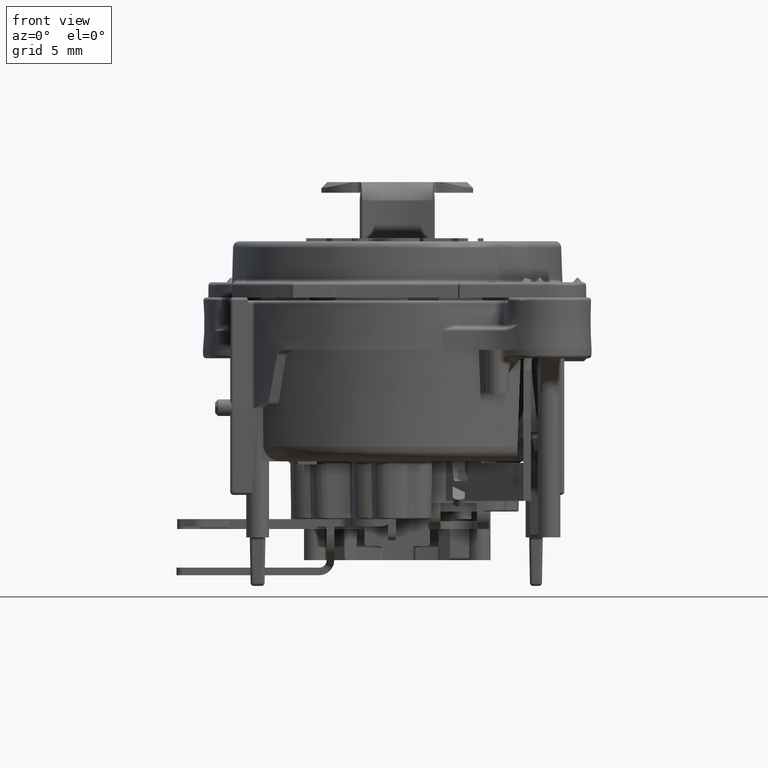
[diagram: clean part render]
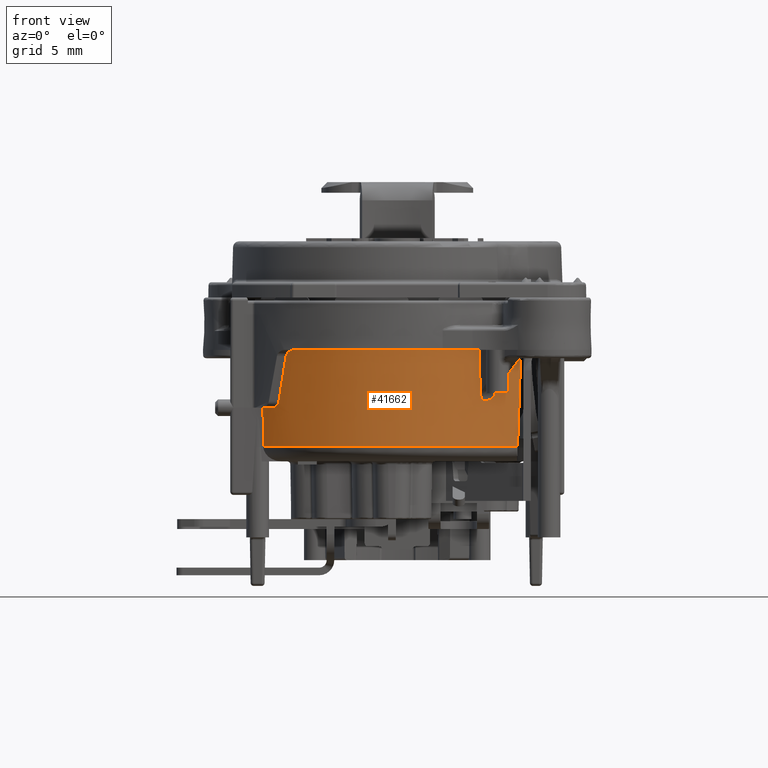
[diagram: same view with one face highlighted and labeled with its STEP entity id]
A machine part, front view. The second image highlights one B-rep face of the part: STEP entity #41662.
In plain terms, the highlighted conical surface has half-angle 1 deg.
Its self-contained STEP definition (entity closure, byte-faithful):
#575=CARTESIAN_POINT('',(6.597023006025E0,-8.654096825730E0,-1.041273796781E0));
#584=CARTESIAN_POINT('',(6.597023006025E0,-8.654096825729E0,-1.041273796776E0));
#585=CARTESIAN_POINT('',(6.569734494499E0,-8.663911344211E0,-1.541882761311E0));
#586=CARTESIAN_POINT('',(6.542370924642E0,-8.673650608783E0,-2.042489087036E0));
#587=CARTESIAN_POINT('',(6.514931512749E0,-8.683313833700E0,-2.543092746398E0));
#589=CARTESIAN_POINT('',(6.514931512764E0,-8.683313833739E0,-2.543092747554E0));
#809=CARTESIAN_POINT('',(5.630559594090E0,-9.263686287858E0,-3.401799628316E0));
#810=CARTESIAN_POINT('',(5.600752667102E0,-9.283184575680E0,-3.334335896256E0));
#811=CARTESIAN_POINT('',(5.547403265412E0,-9.317857847597E0,-3.203772018585E0));
#812=CARTESIAN_POINT('',(5.493036848047E0,-9.353807779979E0,-3.012369080364E0));
#813=CARTESIAN_POINT('',(5.478163368914E0,-9.364881934133E0,-2.894122083722E0));
#814=CARTESIAN_POINT('',(5.476212551509E0,-9.367181870069E0,-2.836777508511E0));
#830=CARTESIAN_POINT('',(5.476212551509E0,-9.367181870069E0,-2.836777508511E0));
#832=CARTESIAN_POINT('',(5.476212551395E0,-9.367181869906E0,-2.836777507577E0));
#833=CARTESIAN_POINT('',(5.444050676385E0,-9.405103240084E0,-1.891186249976E0));
#834=CARTESIAN_POINT('',(5.411666449131E0,-9.442802350387E0,
-9.455937461166E-1));
#835=CARTESIAN_POINT('',(5.379060582960E0,-9.480279913842E0,
3.174349672008E-12));
#1123=CARTESIAN_POINT('',(0.E0,0.E0,-1.136868377216E-13));
#1124=DIRECTION('',(0.E0,0.E0,-1.E0));
#1125=DIRECTION('',(4.934917966020E-1,-8.697504508113E-1,0.E0));
#1126=AXIS2_PLACEMENT_3D('',#1123,#1124,#1125);
#1620=CARTESIAN_POINT('',(-7.328446429314E0,-8.058951735582E0,
-4.131759111665E-1));
#1621=CARTESIAN_POINT('',(-7.322445611335E0,-8.065251535125E0,
-3.774479725498E-1));
#1622=CARTESIAN_POINT('',(-7.301823402751E0,-8.085681136954E0,
-3.061627360745E-1));
#1623=CARTESIAN_POINT('',(-7.240548525709E0,-8.143107566241E0,
-2.037053187849E-1));
#1624=CARTESIAN_POINT('',(-7.155512070101E0,-8.220025181427E0,
-1.197223388932E-1));
#1625=CARTESIAN_POINT('',(-7.044892047198E0,-8.316708635114E0,
-5.331106018789E-2));
#1626=CARTESIAN_POINT('',(-6.914285992303E0,-8.426726410186E0,
-1.086378017874E-2));
#1627=CARTESIAN_POINT('',(-6.812800002706E0,-8.508842918245E0,
-1.643502400058E-8));
#1628=CARTESIAN_POINT('',(-6.759035059364E0,-8.551339516947E0,
-1.643502400839E-8));
#1630=CARTESIAN_POINT('',(5.630559594090E0,-9.263686287858E0,
-3.401799628316E0));
#1631=CARTESIAN_POINT('',(5.700510205789E0,-9.221604801987E0,
-3.380487199513E0));
#1632=CARTESIAN_POINT('',(5.842451058458E0,-9.134006862083E0,
-3.338848823994E0));
#1633=CARTESIAN_POINT('',(6.059068220848E0,-8.993108096946E0,
-3.280998612420E0));
#1634=CARTESIAN_POINT('',(6.209857796512E0,-8.889598926251E0,
-3.244787049381E0));
#1635=CARTESIAN_POINT('',(6.286414269236E0,-8.835497353692E0,
-3.227615711776E0));
#1637=CARTESIAN_POINT('',(0.E0,0.E0,-1.041273796781E0));
#1638=DIRECTION('',(0.E0,0.E0,-1.E0));
#1639=DIRECTION('',(6.723750456339E-1,-7.402106443499E-1,0.E0));
#1640=AXIS2_PLACEMENT_3D('',#1637,#1638,#1639);
#1642=CARTESIAN_POINT('',(-8.818598086994E0,-6.215443282619E0,
-6.367452406437E0));
#1643=CARTESIAN_POINT('',(-8.822436007539E0,-6.222843682069E0,
-5.943483805891E0));
#1644=CARTESIAN_POINT('',(-8.830112935999E0,-6.237656239805E0,
-5.094872941554E0));
#1645=CARTESIAN_POINT('',(-8.837792030705E0,-6.252492315213E0,
-4.244914750652E0));
#1646=CARTESIAN_POINT('',(-8.841632117506E0,-6.259916232336E0,
-3.819598823540E0));
#1648=CARTESIAN_POINT('',(-8.841632117506E0,-6.259916232336E0,
-3.819598823540E0));
#1649=CARTESIAN_POINT('',(-8.841646558317E0,-6.259944150294E0,
-3.817999404812E0));
#1650=CARTESIAN_POINT('',(-8.841685327817E0,-6.259986034391E0,
-3.814800100988E0));
#1651=CARTESIAN_POINT('',(-8.841743878591E0,-6.26E0,-3.811600107909E0));
#1652=CARTESIAN_POINT('',(-8.841778100148E0,-6.26E0,-3.81E0));
#1654=CARTESIAN_POINT('',(0.E0,0.E0,-3.81E0));
#1655=DIRECTION('',(0.E0,0.E0,1.E0));
#1656=DIRECTION('',(-8.161518622222E-1,-5.778374665866E-1,0.E0));
#1657=AXIS2_PLACEMENT_3D('',#1654,#1655,#1656);
#1659=CARTESIAN_POINT('',(-7.795964616341E0,-7.532854060917E0,
-3.396824088836E0));
#1660=CARTESIAN_POINT('',(-7.650427938692E0,-7.708496589610E0,
-2.400705809106E0));
#1661=CARTESIAN_POINT('',(-7.495210239244E0,-7.883879174262E0,
-1.406061745296E0));
#1662=CARTESIAN_POINT('',(-7.328446429313E0,-8.058951735581E0,
-4.131759111690E-1));
#6960=CARTESIAN_POINT('',(7.922246238027E0,-7.323757366507E0,
-6.367452406437E0));
#6961=CARTESIAN_POINT('',(7.940187209237E0,-7.317560956405E0,
-5.853690210729E0));
#6962=CARTESIAN_POINT('',(7.975999746305E0,-7.305077477538E0,
-4.828153443404E0));
#6963=CARTESIAN_POINT('',(8.029511630991E0,-7.286081143795E0,
-3.295773042999E0));
#6964=CARTESIAN_POINT('',(8.082812711603E0,-7.266816480073E0,
-1.769431693604E0));
#6965=CARTESIAN_POINT('',(8.118204982828E0,-7.253795677453E0,
-7.559249411019E-1));
#6966=CARTESIAN_POINT('',(8.135865889240E0,-7.247241087188E0,
-2.501827518943E-1));
#10794=CARTESIAN_POINT('',(-8.818598086994E0,-6.215443282619E0,
-6.367452406437E0));
#10796=CARTESIAN_POINT('',(0.E0,0.E0,-6.367452406437E0));
#10797=DIRECTION('',(0.E0,0.E0,1.E0));
#10798=DIRECTION('',(-8.173802976210E-1,-5.760984716705E-1,0.E0));
#10799=AXIS2_PLACEMENT_3D('',#10796,#10797,#10798);
#30244=CARTESIAN_POINT('',(-7.795964616341E0,-7.532854060917E0,
-3.396824088833E0));
#30245=CARTESIAN_POINT('',(-7.801905535449E0,-7.525684197817E0,
-3.437486403087E0));
#30246=CARTESIAN_POINT('',(-7.823743417076E0,-7.501033903396E0,
-3.518935215935E0));
#30247=CARTESIAN_POINT('',(-7.889130112464E0,-7.429498301712E0,
-3.633641080282E0));
#30248=CARTESIAN_POINT('',(-7.980439357463E0,-7.329182257067E0,
-3.726039902276E0));
#30249=CARTESIAN_POINT('',(-8.096268605174E0,-7.199590198139E0,
-3.791894525473E0));
#30250=CARTESIAN_POINT('',(-8.186640256013E0,-7.095691938372E0,-3.81E0));
#30251=CARTESIAN_POINT('',(-8.233875222098E0,-7.040450184412E0,-3.81E0));
#31875=CARTESIAN_POINT('',(8.135865889240E0,-7.247241087188E0,
-2.501827518943E-1));
#31876=CARTESIAN_POINT('',(8.051524449494E0,-7.339786726603E0,
-3.316303335083E-1));
#31877=CARTESIAN_POINT('',(7.878482677301E0,-7.523175642063E0,
-4.987349895598E-1));
#31878=CARTESIAN_POINT('',(7.605431068206E0,-7.792767475495E0,
-7.624177983313E-1));
#31879=CARTESIAN_POINT('',(7.414453762486E0,-7.968244122971E0,
-9.468424531685E-1));
#31880=CARTESIAN_POINT('',(7.316667243603E0,-8.054842323566E0,
-1.041273796781E0));
#33237=CARTESIAN_POINT('',(5.630559594090E0,-9.263686287858E0,
-3.401799628316E0));
#33239=CARTESIAN_POINT('',(6.286414269236E0,-8.835497353692E0,
-3.227615711776E0));
#33248=CARTESIAN_POINT('',(6.514931512764E0,-8.683313833739E0,
-2.543092747554E0));
#33249=CARTESIAN_POINT('',(6.512774839739E0,-8.684073397902E0,
-2.582436379487E0));
#33250=CARTESIAN_POINT('',(6.501707055573E0,-8.690614764826E0,
-2.663389713033E0));
#33251=CARTESIAN_POINT('',(6.467343262348E0,-8.713433436271E0,
-2.792899258946E0));
#33252=CARTESIAN_POINT('',(6.418496372710E0,-8.746602887257E0,
-2.927481175643E0));
#33253=CARTESIAN_POINT('',(6.356467419257E0,-8.788703196370E0,
-3.072277854510E0));
#33254=CARTESIAN_POINT('',(6.310005422876E0,-8.819852417026E0,
-3.174313400502E0));
#33255=CARTESIAN_POINT('',(6.286414269236E0,-8.835497353692E0,
-3.227615711776E0));
#34293=VERTEX_POINT('',#1648);
#34294=VERTEX_POINT('',#1652);
#34339=CARTESIAN_POINT('',(8.135865889240E0,-7.247241087188E0,
-2.501827518943E-1));
#34340=VERTEX_POINT('',#34339);
#34368=VERTEX_POINT('',#10794);
#34369=VERTEX_POINT('',#6960);
#34875=VERTEX_POINT('',#575);
#34879=CARTESIAN_POINT('',(7.316667243603E0,-8.054842323566E0,
-1.041273796781E0));
#34880=VERTEX_POINT('',#34879);
#35622=CARTESIAN_POINT('',(-8.233875222098E0,-7.040450184411E0,-3.81E0));
#35623=VERTEX_POINT('',#35622);
#35626=VERTEX_POINT('',#30244);
#35628=VERTEX_POINT('',#1662);
#35687=VERTEX_POINT('',#830);
#35689=VERTEX_POINT('',#33237);
#35696=VERTEX_POINT('',#33239);
#35698=VERTEX_POINT('',#589);
#35699=VERTEX_POINT('',#835);
#35729=VERTEX_POINT('',#1628);
#41628=CARTESIAN_POINT('',(0.E0,0.E0,-3.208293964346E0));
#41629=DIRECTION('',(0.E0,0.E0,1.E0));
#41630=DIRECTION('',(0.E0,-1.E0,0.E0));
#41631=AXIS2_PLACEMENT_3D('',#41628,#41629,#41630);
#41632=CONICAL_SURFACE('',#41631,1.084399902054E1,1.E0);
#41634=ORIENTED_EDGE('',*,*,#41633,.T.);
#41635=ORIENTED_EDGE('',*,*,#41001,.F.);
#41636=ORIENTED_EDGE('',*,*,#40759,.F.);
#41637=ORIENTED_EDGE('',*,*,#40745,.F.);
#41639=ORIENTED_EDGE('',*,*,#41638,.T.);
#41641=ORIENTED_EDGE('',*,*,#41640,.F.);
#41642=ORIENTED_EDGE('',*,*,#40262,.F.);
#41643=ORIENTED_EDGE('',*,*,#40244,.F.);
#41645=ORIENTED_EDGE('',*,*,#41644,.F.);
#41647=ORIENTED_EDGE('',*,*,#41646,.F.);
#41649=ORIENTED_EDGE('',*,*,#41648,.F.);
#41651=ORIENTED_EDGE('',*,*,#41650,.T.);
#41653=ORIENTED_EDGE('',*,*,#41652,.T.);
#41655=ORIENTED_EDGE('',*,*,#41654,.T.);
#41657=ORIENTED_EDGE('',*,*,#41656,.F.);
#41659=ORIENTED_EDGE('',*,*,#41658,.T.);
#41660=EDGE_LOOP('',(#41634,#41635,#41636,#41637,#41639,#41641,#41642,#41643,
#41645,#41647,#41649,#41651,#41653,#41655,#41657,#41659));
#41661=FACE_OUTER_BOUND('',#41660,.F.);
#588=B_SPLINE_CURVE_WITH_KNOTS('',3,(#584,#585,#586,#587),.UNSPECIFIED.,.F.,.F.,
(4,4),(0.E0,1.E0),.UNSPECIFIED.);
#815=B_SPLINE_CURVE_WITH_KNOTS('',3,(#809,#810,#811,#812,#813,#814),
.UNSPECIFIED.,.F.,.F.,(4,1,1,4),(0.E0,3.333333333333E-1,6.666666666667E-1,1.E0),
.UNSPECIFIED.);
#836=B_SPLINE_CURVE_WITH_KNOTS('',3,(#832,#833,#834,#835),.UNSPECIFIED.,.F.,.F.,
(4,4),(0.E0,1.E0),.UNSPECIFIED.);
#1127=CIRCLE('',#1126,1.09E1);
#1629=B_SPLINE_CURVE_WITH_KNOTS('',3,(#1620,#1621,#1622,#1623,#1624,#1625,#1626,
#1627,#1628),.UNSPECIFIED.,.F.,.F.,(4,1,1,1,1,1,4),(0.E0,1.666666666667E-1,
3.333333333333E-1,5.E-1,6.666666666667E-1,8.333333333333E-1,1.E0),
.UNSPECIFIED.);
#1636=B_SPLINE_CURVE_WITH_KNOTS('',3,(#1630,#1631,#1632,#1633,#1634,#1635),
.UNSPECIFIED.,.F.,.F.,(4,1,1,4),(0.E0,3.333333333333E-1,6.666666666667E-1,1.E0),
.UNSPECIFIED.);
#1641=CIRCLE('',#1640,1.088182449827E1);
#1647=B_SPLINE_CURVE_WITH_KNOTS('',3,(#1642,#1643,#1644,#1645,#1646),
.UNSPECIFIED.,.F.,.F.,(4,1,4),(0.E0,5.E-1,1.E0),.UNSPECIFIED.);
#1653=B_SPLINE_CURVE_WITH_KNOTS('',3,(#1648,#1649,#1650,#1651,#1652),
.UNSPECIFIED.,.F.,.F.,(4,1,4),(0.E0,5.E-1,1.E0),.UNSPECIFIED.);
#1658=CIRCLE('',#1657,1.083349620262E1);
#1663=B_SPLINE_CURVE_WITH_KNOTS('',3,(#1659,#1660,#1661,#1662),.UNSPECIFIED.,
.F.,.F.,(4,4),(0.E0,1.E0),.UNSPECIFIED.);
#6967=B_SPLINE_CURVE_WITH_KNOTS('',3,(#6960,#6961,#6962,#6963,#6964,#6965,
#6966),.UNSPECIFIED.,.F.,.F.,(4,1,1,1,4),(0.E0,2.5E-1,5.E-1,7.5E-1,1.E0),
.UNSPECIFIED.);
#10800=CIRCLE('',#10799,1.078885570482E1);
#30252=B_SPLINE_CURVE_WITH_KNOTS('',3,(#30244,#30245,#30246,#30247,#30248,
#30249,#30250,#30251),.UNSPECIFIED.,.F.,.F.,(4,1,1,1,1,4),(0.E0,2.E-1,4.E-1,
6.E-1,8.E-1,1.E0),.UNSPECIFIED.);
#31881=B_SPLINE_CURVE_WITH_KNOTS('',3,(#31875,#31876,#31877,#31878,#31879,
#31880),.UNSPECIFIED.,.F.,.F.,(4,1,1,4),(0.E0,3.333333333333E-1,
6.666666666667E-1,1.E0),.UNSPECIFIED.);
#33256=B_SPLINE_CURVE_WITH_KNOTS('',3,(#33248,#33249,#33250,#33251,#33252,
#33253,#33254,#33255),.UNSPECIFIED.,.F.,.F.,(4,1,1,1,1,4),(0.E0,2.E-1,4.E-1,
6.E-1,8.E-1,1.E0),.UNSPECIFIED.);
#40244=EDGE_CURVE('',#34880,#34875,#1641,.T.);
#40262=EDGE_CURVE('',#34875,#35698,#588,.T.);
#40745=EDGE_CURVE('',#35689,#35687,#815,.T.);
#40759=EDGE_CURVE('',#35687,#35699,#836,.T.);
#41001=EDGE_CURVE('',#35699,#35729,#1127,.T.);
#41633=EDGE_CURVE('',#35628,#35729,#1629,.T.);
#41638=EDGE_CURVE('',#35689,#35696,#1636,.T.);
#41640=EDGE_CURVE('',#35698,#35696,#33256,.T.);
#41644=EDGE_CURVE('',#34340,#34880,#31881,.T.);
#41646=EDGE_CURVE('',#34369,#34340,#6967,.T.);
#41648=EDGE_CURVE('',#34368,#34369,#10800,.T.);
#41650=EDGE_CURVE('',#34368,#34293,#1647,.T.);
#41652=EDGE_CURVE('',#34293,#34294,#1653,.T.);
#41654=EDGE_CURVE('',#34294,#35623,#1658,.T.);
#41656=EDGE_CURVE('',#35626,#35623,#30252,.T.);
#41658=EDGE_CURVE('',#35626,#35628,#1663,.T.);
#41662=ADVANCED_FACE('',(#41661),#41632,.T.);